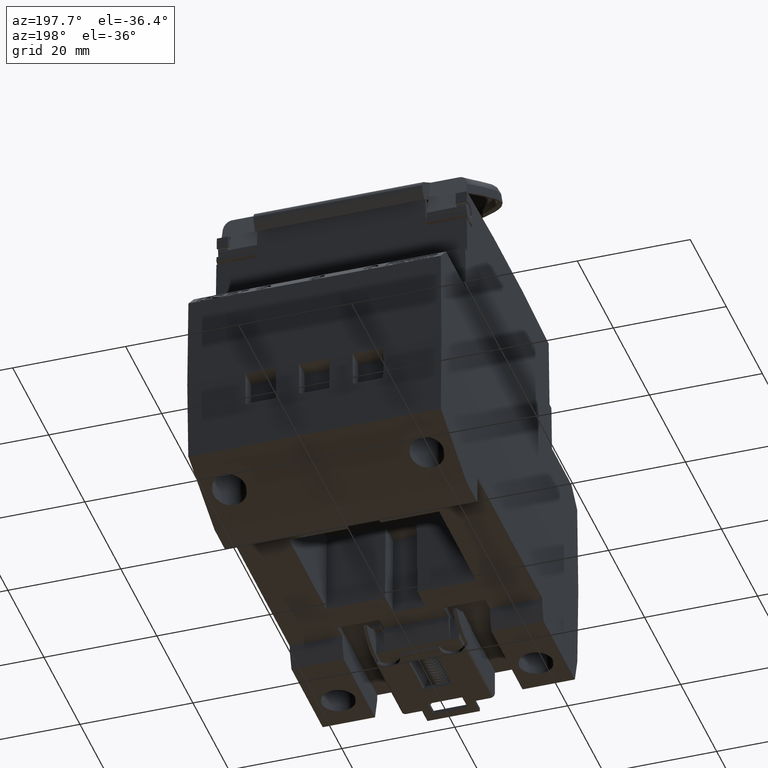
[diagram: clean part render]
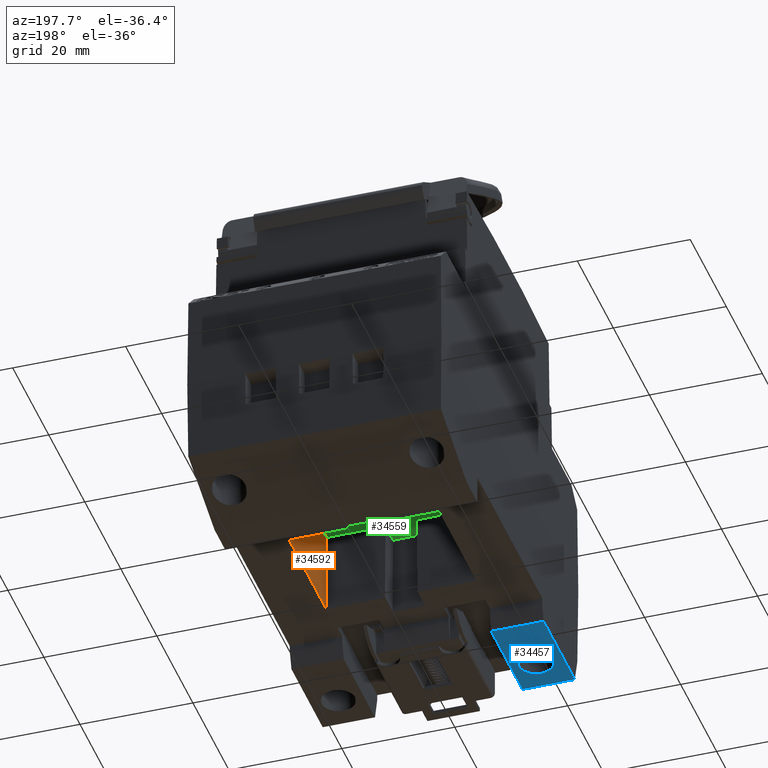
[diagram: same view with three faces highlighted in distinct colors, each labeled with its STEP entity id]
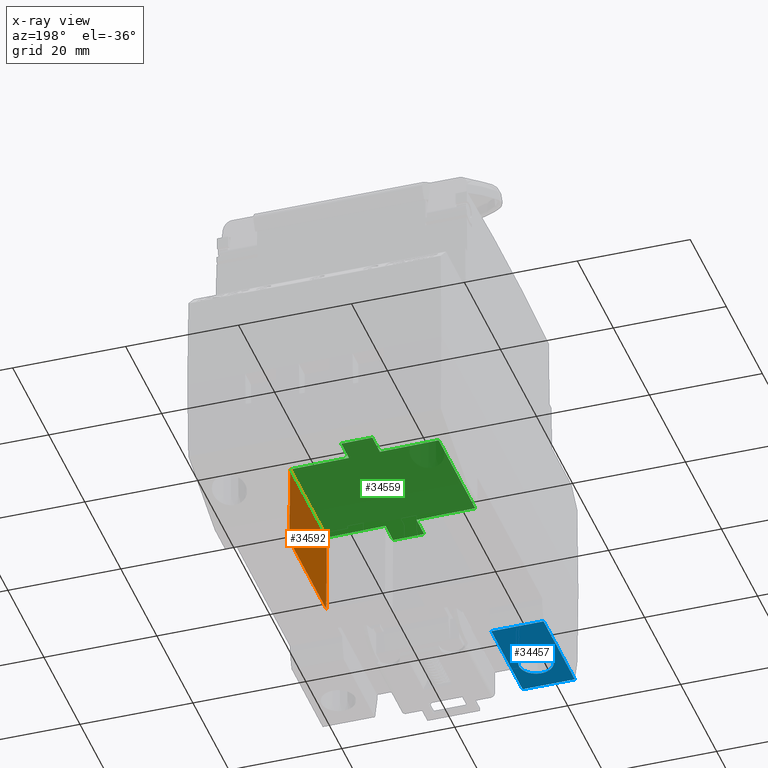
[diagram: x-ray of the same camera — body ghosted, the three highlighted faces saturated]
A machine part, auxiliary view with three faces highlighted in distinct colors.
The next image is the same camera in x-ray (body ghosted, the three faces saturated) — at least one of them is partly hidden behind the body in this view.
Their STEP definitions:

[orange] entity #34592 — the highlighted planar face has unit normal (1, -0, 0.0087).
#1136 = VECTOR ( 'NONE', #61445, 1000.000000000000000 ) ;
#2998 = AXIS2_PLACEMENT_3D ( 'NONE', #14542, #14566, #14543 ) ;
#11878 = CARTESIAN_POINT ( 'NONE',  ( 13.27919503604809900, 10.27919503604852000, -40.35000000000000100 ) ) ;
#11980 = CARTESIAN_POINT ( 'NONE',  ( 13.14969785570899500, 10.14969785570943400, -25.51109290939071500 ) ) ;
#14527 = FACE_OUTER_BOUND ( 'NONE', #25695, .T. ) ;
#14542 = CARTESIAN_POINT ( 'NONE',  ( 13.00006473079048100, -11.70000000000000300, -8.364835110347229400 ) ) ;
#14543 = DIRECTION ( 'NONE',  ( 0.008726535498373955500, 0.0000000000000000000, -0.9999619230641713100 ) ) ;
#14566 = DIRECTION ( 'NONE',  ( 0.9999619230641713100, -0.0000000000000000000, 0.008726535498373955500 ) ) ;
#14574 = PLANE ( 'NONE',  #2998 ) ;
#22458 = VECTOR ( 'NONE', #41760, 1000.000000000000100 ) ;
#25695 = EDGE_LOOP ( 'NONE', ( #30331, #30385, #30317, #30356 ) ) ;
#28527 = EDGE_CURVE ( 'NONE', #39632, #43085, #55778, .T. ) ;
#28542 = EDGE_CURVE ( 'NONE', #32657, #39632, #55828, .T. ) ;
#29216 = EDGE_CURVE ( 'NONE', #43075, #32657, #61440, .T. ) ;
#30317 = ORIENTED_EDGE ( 'NONE', *, *, #29216, .F. ) ;
#30331 = ORIENTED_EDGE ( 'NONE', *, *, #28527, .F. ) ;
#30356 = ORIENTED_EDGE ( 'NONE', *, *, #39915, .T. ) ;
#30385 = ORIENTED_EDGE ( 'NONE', *, *, #28542, .F. ) ;
#31326 = CARTESIAN_POINT ( 'NONE',  ( 13.27919503604810100, -10.27919503604852000, -40.34999999999999400 ) ) ;
#32657 = VERTEX_POINT ( 'NONE', #63629 ) ;
#34592 = ADVANCED_FACE ( 'NONE', ( #14527 ), #14574, .F. ) ;
#39632 = VERTEX_POINT ( 'NONE', #31326 ) ;
#39915 = EDGE_CURVE ( 'NONE', #43075, #43085, #41660, .T. ) ;
#41660 = LINE ( 'NONE', #41799, #22458 ) ;
#41760 = DIRECTION ( 'NONE',  ( 0.008726203243944111500, 0.008726203243944229500, -0.9999238504775704900 ) ) ;
#41799 = CARTESIAN_POINT ( 'NONE',  ( 13.14969785570900000, 10.14969785570941800, -25.51109290939071500 ) ) ;
#43075 = VERTEX_POINT ( 'NONE', #11980 ) ;
#43085 = VERTEX_POINT ( 'NONE', #11878 ) ;
#49720 = VECTOR ( 'NONE', #55794, 1000.000000000000000 ) ;
#49758 = VECTOR ( 'NONE', #55737, 1000.000000000000000 ) ;
#55737 = DIRECTION ( 'NONE',  ( 0.0000000000000000000, 1.000000000000000000, -1.927470528863119800E-016 ) ) ;
#55756 = CARTESIAN_POINT ( 'NONE',  ( 13.27919503604810300, -18.50000000000000000, -40.34999999999999400 ) ) ;
#55778 = LINE ( 'NONE', #55756, #49758 ) ;
#55794 = DIRECTION ( 'NONE',  ( 0.008726203243944233000, -0.008726203243943880800, -0.9999238504775704900 ) ) ;
#55795 = CARTESIAN_POINT ( 'NONE',  ( 13.14969785570900000, -10.14969785570942500, -25.51109290939071900 ) ) ;
#55828 = LINE ( 'NONE', #55795, #49720 ) ;
#61440 = LINE ( 'NONE', #61466, #1136 ) ;
#61445 = DIRECTION ( 'NONE',  ( -0.0000000000000000000, -1.000000000000000000, -0.0000000000000000000 ) ) ;
#61466 = CARTESIAN_POINT ( 'NONE',  ( 13.14969785570900000, -11.70000000000000300, -25.51109290939071500 ) ) ;
#63629 = CARTESIAN_POINT ( 'NONE',  ( 13.14969785570899700, -10.14969785570942500, -25.51109290939071500 ) ) ;

[blue] entity #34457 — the highlighted planar face has unit normal (0, 0, -1).
#766 = VECTOR ( 'NONE', #1298, 1000.000000000000000 ) ;
#1278 = CARTESIAN_POINT ( 'NONE',  ( -22.32828111762895400, 65.75000000000000000, -44.60000000000000100 ) ) ;
#1298 = DIRECTION ( 'NONE',  ( 0.0000000000000000000, 1.000000000000000000, 0.0000000000000000000 ) ) ;
#1300 = LINE ( 'NONE', #1278, #766 ) ;
#2793 = AXIS2_PLACEMENT_3D ( 'NONE', #13598, #13620, #13586 ) ;
#11304 = CARTESIAN_POINT ( 'NONE',  ( -14.50218171694732300, -30.25000000000000000, -44.59999999999021700 ) ) ;
#11469 = CARTESIAN_POINT ( 'NONE',  ( -20.49781828305270500, -30.25000000000000000, -44.59999999999021700 ) ) ;
#13586 = DIRECTION ( 'NONE',  ( -1.000000000000000000, 0.0000000000000000000, -0.0000000000000000000 ) ) ;
#13588 = PLANE ( 'NONE',  #2793 ) ;
#13598 = CARTESIAN_POINT ( 'NONE',  ( -30.75000000000000000, -36.58554989945169200, -44.60000000000000100 ) ) ;
#13609 = FACE_BOUND ( 'NONE', #25756, .T. ) ;
#13620 = DIRECTION ( 'NONE',  ( 0.0000000000000000000, 0.0000000000000000000, -1.000000000000000000 ) ) ;
#13638 = FACE_OUTER_BOUND ( 'NONE', #25778, .T. ) ;
#25756 = EDGE_LOOP ( 'NONE', ( #33030, #33090 ) ) ;
#25778 = EDGE_LOOP ( 'NONE', ( #32995, #33093, #33094, #33056 ) ) ;
#28439 = EDGE_CURVE ( 'NONE', #42886, #42909, #41596, .T. ) ;
#28456 = EDGE_CURVE ( 'NONE', #39723, #39658, #55464, .T. ) ;
#28790 = EDGE_CURVE ( 'NONE', #39658, #38894, #60019, .T. ) ;
#28796 = EDGE_CURVE ( 'NONE', #39723, #38932, #60005, .T. ) ;
#31317 = CARTESIAN_POINT ( 'NONE',  ( -13.06124280212683800, -36.65488103546668700, -44.60000000000000100 ) ) ;
#31429 = CARTESIAN_POINT ( 'NONE',  ( -13.06124280212683800, -19.31724503691492600, -44.60000000000000100 ) ) ;
#31962 = CARTESIAN_POINT ( 'NONE',  ( -22.32828111762895400, -19.31724503691492600, -44.60000000000000100 ) ) ;
#31985 = CARTESIAN_POINT ( 'NONE',  ( -22.32828111762895400, -36.65488103546668700, -44.60000000000000100 ) ) ;
#32995 = ORIENTED_EDGE ( 'NONE', *, *, #33693, .T. ) ;
#33030 = ORIENTED_EDGE ( 'NONE', *, *, #28439, .T. ) ;
#33056 = ORIENTED_EDGE ( 'NONE', *, *, #28790, .T. ) ;
#33090 = ORIENTED_EDGE ( 'NONE', *, *, #40186, .T. ) ;
#33093 = ORIENTED_EDGE ( 'NONE', *, *, #28796, .F. ) ;
#33094 = ORIENTED_EDGE ( 'NONE', *, *, #28456, .T. ) ;
#33693 = EDGE_CURVE ( 'NONE', #38894, #38932, #1300, .T. ) ;
#34457 = ADVANCED_FACE ( 'NONE', ( #13638, #13609 ), #13588, .T. ) ;
#38894 = VERTEX_POINT ( 'NONE', #31985 ) ;
#38932 = VERTEX_POINT ( 'NONE', #31962 ) ;
#39658 = VERTEX_POINT ( 'NONE', #31317 ) ;
#39723 = VERTEX_POINT ( 'NONE', #31429 ) ;
#40186 = EDGE_CURVE ( 'NONE', #42909, #42886, #58726, .T. ) ;
#41596 = B_SPLINE_CURVE_WITH_KNOTS ( 'NONE', 3,
 ( #55371, #55418, #55397, #55422, #55383, #55398, #55412, #55369, #55384, #55385, #55401, #55411, #55425, #55417, #55368, #55379, #55394, #55404, #55387, #55378, #55388, #55372, #55370, #55406, #55389, #55414, #55402, #55390, #55391, #55399, #55405, #55407, #55392, #55393, #55408, #55409, #55420, #55413 ),
 .UNSPECIFIED., .F., .F.,
 ( 4, 1, 1, 1, 2, 2, 2, 1, 1, 1, 2, 2, 2, 1, 1, 1, 2, 2, 2, 1, 1, 1, 2, 2, 4 ),
 ( 0.0000000000000000000, 0.06249999999999986100, 0.09374999999999984700, 0.1093750000000004700, 0.1171875000000002500, 0.1250000000000000300, 0.2499999999999951700, 0.3124999999999927800, 0.3437499999999914000, 0.3593749999999905100, 0.3671874999999902300, 0.3749999999999900100, 0.4999999999999935600, 0.5624999999999953400, 0.5937499999999962300, 0.6093749999999965600, 0.6171874999999966700, 0.6249999999999967800, 0.7499999999999954500, 0.8124999999999944500, 0.8437499999999943400, 0.8593749999999947800, 0.8671874999999952300, 0.8749999999999956700, 1.000000000000000000 ),
 .UNSPECIFIED. ) ;
#42886 = VERTEX_POINT ( 'NONE', #11304 ) ;
#42909 = VERTEX_POINT ( 'NONE', #11469 ) ;
#45845 = CARTESIAN_POINT ( 'NONE',  ( -20.49781828305270500, -30.25000000000000000, -44.59999999999021700 ) ) ;
#45846 = CARTESIAN_POINT ( 'NONE',  ( -20.49775081130747600, -30.44068614795495600, -44.60000000000000900 ) ) ;
#45884 = CARTESIAN_POINT ( 'NONE',  ( -19.91215691852843500, -32.07729329983708100, -44.60000000000000900 ) ) ;
#45888 = CARTESIAN_POINT ( 'NONE',  ( -20.39468128895300900, -31.04052150002745600, -44.59999999999999400 ) ) ;
#45889 = CARTESIAN_POINT ( 'NONE',  ( -16.44091899579004200, -33.05461062231494700, -44.60000000000000100 ) ) ;
#45890 = CARTESIAN_POINT ( 'NONE',  ( -20.32101526219636500, -31.26464605959319700, -44.60000000000000100 ) ) ;
#45891 = CARTESIAN_POINT ( 'NONE',  ( -15.04085372707911000, -31.98690869181697800, -44.59999999999998700 ) ) ;
#45893 = CARTESIAN_POINT ( 'NONE',  ( -16.42055331465698500, -33.04684656631074100, -44.60000000000000900 ) ) ;
#45897 = CARTESIAN_POINT ( 'NONE',  ( -16.55245370682565600, -33.09491581125593000, -44.60000000000000100 ) ) ;
#45900 = CARTESIAN_POINT ( 'NONE',  ( -18.24938545251194800, -33.17759014012694500, -44.60000000000000900 ) ) ;
#45901 = CARTESIAN_POINT ( 'NONE',  ( -14.72142526963165200, -31.37560136382872900, -44.60000000000000900 ) ) ;
#45905 = CARTESIAN_POINT ( 'NONE',  ( -18.93034186254882900, -32.88854611178859200, -44.60000000000000100 ) ) ;
#45906 = CARTESIAN_POINT ( 'NONE',  ( -17.02881151415274600, -33.22156700232654500, -44.60000000000000100 ) ) ;
#45907 = CARTESIAN_POINT ( 'NONE',  ( -14.50231678665792100, -30.63172901573070600, -44.59999999999999400 ) ) ;
#45910 = CARTESIAN_POINT ( 'NONE',  ( -17.30956951167438300, -33.24785197369182300, -44.60000000000000900 ) ) ;
#45911 = CARTESIAN_POINT ( 'NONE',  ( -20.29684656631130900, -31.32944668534212000, -44.60000000000000100 ) ) ;
#45912 = CARTESIAN_POINT ( 'NONE',  ( -18.76944820426766800, -32.96676743783586300, -44.59999999999998700 ) ) ;
#45913 = CARTESIAN_POINT ( 'NONE',  ( -18.65144382592253100, -33.01799371626140100, -44.60000000000001600 ) ) ;
#45914 = CARTESIAN_POINT ( 'NONE',  ( -19.47358799580273800, -32.51601980514841000, -44.60000000000000900 ) ) ;
#45915 = CARTESIAN_POINT ( 'NONE',  ( -16.70981405323605200, -33.14481406458246900, -44.60000000000000900 ) ) ;
#45916 = CARTESIAN_POINT ( 'NONE',  ( -20.34483835880542200, -31.19774203257804500, -44.60000000000000100 ) ) ;
#45917 = CARTESIAN_POINT ( 'NONE',  ( -15.23398019485335200, -32.22358799580683100, -44.60000000000000100 ) ) ;
#45918 = CARTESIAN_POINT ( 'NONE',  ( -14.78323256216548600, -31.51944820427080900, -44.60000000000001600 ) ) ;
#45919 = CARTESIAN_POINT ( 'NONE',  ( -14.75216883529862800, -31.44886301279535700, -44.60000000000000900 ) ) ;
#45920 = CARTESIAN_POINT ( 'NONE',  ( -14.57247742491099600, -30.99955603247051500, -44.60000000000000900 ) ) ;
#45921 = CARTESIAN_POINT ( 'NONE',  ( -18.69886301279345300, -32.99783116470218400, -44.60000000000000100 ) ) ;
#45922 = CARTESIAN_POINT ( 'NONE',  ( -19.23690869180982700, -32.70914627292396700, -44.59999999999999400 ) ) ;
#45923 = CARTESIAN_POINT ( 'NONE',  ( -18.62561202507613300, -33.02857050755348200, -44.60000000000000100 ) ) ;
#45924 = CARTESIAN_POINT ( 'NONE',  ( -20.30458612204997900, -31.30914292177644500, -44.59999999999999400 ) ) ;
#45925 = CARTESIAN_POINT ( 'NONE',  ( -17.88086097665123800, -33.24775090177330100, -44.60000000000000900 ) ) ;
#45926 = CARTESIAN_POINT ( 'NONE',  ( -16.48547178351721200, -33.07106189173290300, -44.60000000000001600 ) ) ;
#45927 = CARTESIAN_POINT ( 'NONE',  ( -14.73200628373904100, -31.40144382592354000, -44.60000000000000100 ) ) ;
#45928 = CARTESIAN_POINT ( 'NONE',  ( -15.67270670015939700, -32.66215691852024600, -44.60000000000000100 ) ) ;
#45929 = CARTESIAN_POINT ( 'NONE',  ( -14.50218171694732300, -30.25000000000000000, -44.59999999999021700 ) ) ;
#45934 = CARTESIAN_POINT ( 'NONE',  ( -20.13517320000163100, -31.73803088825591300, -44.60000000000000100 ) ) ;
#45935 = CARTESIAN_POINT ( 'NONE',  ( -16.01196911175823700, -32.88517320001111700, -44.60000000000000100 ) ) ;
#45936 = CARTESIAN_POINT ( 'NONE',  ( -14.86145388821371300, -31.68034186255420100, -44.60000000000000100 ) ) ;
#45937 = CARTESIAN_POINT ( 'NONE',  ( -20.47138996815393200, -30.72163589019858400, -44.59999999999999400 ) ) ;
#49322 = VECTOR ( 'NONE', #59974, 1000.000000000000000 ) ;
#49340 = VECTOR ( 'NONE', #60020, 1000.000000000000000 ) ;
#49685 = VECTOR ( 'NONE', #55497, 1000.000000000000000 ) ;
#55368 = CARTESIAN_POINT ( 'NONE',  ( -16.30113698720662500, -27.50216883529728300, -44.60000000000002300 ) ) ;
#55369 = CARTESIAN_POINT ( 'NONE',  ( -14.70315343368916700, -29.17055331465726600, -44.59999999999999400 ) ) ;
#55370 = CARTESIAN_POINT ( 'NONE',  ( -18.44754629317417000, -27.40508418874311800, -44.60000000000001600 ) ) ;
#55371 = CARTESIAN_POINT ( 'NONE',  ( -14.50218171694732300, -30.25000000000000000, -44.59999999999021700 ) ) ;
#55372 = CARTESIAN_POINT ( 'NONE',  ( -18.29018594676367800, -27.35518593541590700, -44.60000000000001600 ) ) ;
#55378 = CARTESIAN_POINT ( 'NONE',  ( -17.69043048832540400, -27.25214802630694400, -44.60000000000001600 ) ) ;
#55379 = CARTESIAN_POINT ( 'NONE',  ( -16.34855617407751500, -27.48200628373833300, -44.60000000000000100 ) ) ;
#55383 = CARTESIAN_POINT ( 'NONE',  ( -14.65516164119457600, -29.30225796742538300, -44.60000000000000900 ) ) ;
#55384 = CARTESIAN_POINT ( 'NONE',  ( -14.86482679999067700, -28.76196911175377500, -44.60000000000000900 ) ) ;
#55385 = CARTESIAN_POINT ( 'NONE',  ( -15.08784308147123600, -28.42270670016528200, -44.60000000000000900 ) ) ;
#55387 = CARTESIAN_POINT ( 'NONE',  ( -17.11913902334921300, -27.25224909822919600, -44.60000000000002300 ) ) ;
#55388 = CARTESIAN_POINT ( 'NONE',  ( -17.97118848584686300, -27.27843299767126700, -44.59999999999998700 ) ) ;
#55389 = CARTESIAN_POINT ( 'NONE',  ( -18.55908100420990800, -27.44538937768475900, -44.59999999999999400 ) ) ;
#55390 = CARTESIAN_POINT ( 'NONE',  ( -19.32729329983842300, -27.83784308147423700, -44.60000000000000100 ) ) ;
#55391 = CARTESIAN_POINT ( 'NONE',  ( -19.76601980514773900, -28.27641200419592900, -44.59999999999999400 ) ) ;
#55392 = CARTESIAN_POINT ( 'NONE',  ( -20.24783116470187800, -29.05113698720592600, -44.60000000000000900 ) ) ;
#55393 = CARTESIAN_POINT ( 'NONE',  ( -20.26799371626123000, -29.09855617407713900, -44.59999999999999400 ) ) ;
#55394 = CARTESIAN_POINT ( 'NONE',  ( -16.37438797492395500, -27.47142949244636200, -44.59999999999999400 ) ) ;
#55397 = CARTESIAN_POINT ( 'NONE',  ( -14.52861003184607100, -29.77836410980925000, -44.60000000000000900 ) ) ;
#55398 = CARTESIAN_POINT ( 'NONE',  ( -14.67898473780364000, -29.23535394040887100, -44.60000000000000900 ) ) ;
#55399 = CARTESIAN_POINT ( 'NONE',  ( -19.95914627292280800, -28.51309130818783500, -44.60000000000000100 ) ) ;
#55401 = CARTESIAN_POINT ( 'NONE',  ( -15.52641200419743600, -27.98398019485042500, -44.60000000000001600 ) ) ;
#55402 = CARTESIAN_POINT ( 'NONE',  ( -18.98803088825146200, -27.61482679999524600, -44.60000000000000100 ) ) ;
#55404 = CARTESIAN_POINT ( 'NONE',  ( -16.75061454748689400, -27.32240985987555600, -44.60000000000000900 ) ) ;
#55405 = CARTESIAN_POINT ( 'NONE',  ( -20.13854611178772200, -28.81965813744942700, -44.60000000000000100 ) ) ;
#55406 = CARTESIAN_POINT ( 'NONE',  ( -18.51452821648270200, -27.42893810826653600, -44.60000000000000900 ) ) ;
#55407 = CARTESIAN_POINT ( 'NONE',  ( -20.21676743783535500, -28.98055179573131200, -44.59999999999999400 ) ) ;
#55408 = CARTESIAN_POINT ( 'NONE',  ( -20.27857473036835900, -29.12439863617128600, -44.60000000000000100 ) ) ;
#55409 = CARTESIAN_POINT ( 'NONE',  ( -20.42752257508901100, -29.50044396752949200, -44.60000000000000100 ) ) ;
#55411 = CARTESIAN_POINT ( 'NONE',  ( -15.76309130819047300, -27.79085372707397300, -44.59999999999999400 ) ) ;
#55412 = CARTESIAN_POINT ( 'NONE',  ( -14.69541387795001300, -29.19085707822464600, -44.60000000000000100 ) ) ;
#55413 = CARTESIAN_POINT ( 'NONE',  ( -20.49781828305270500, -30.25000000000000000, -44.59999999999021700 ) ) ;
#55414 = CARTESIAN_POINT ( 'NONE',  ( -18.57944668534241100, -27.45315343368888600, -44.60000000000000100 ) ) ;
#55417 = CARTESIAN_POINT ( 'NONE',  ( -16.23055179573246300, -27.53323256216324900, -44.60000000000000100 ) ) ;
#55418 = CARTESIAN_POINT ( 'NONE',  ( -14.50224918869254200, -30.05931385204953100, -44.60000000000000900 ) ) ;
#55420 = CARTESIAN_POINT ( 'NONE',  ( -20.49768321334207500, -29.86827098426929100, -44.59999999999999400 ) ) ;
#55422 = CARTESIAN_POINT ( 'NONE',  ( -14.60531871104699600, -29.45947849997841300, -44.60000000000000900 ) ) ;
#55425 = CARTESIAN_POINT ( 'NONE',  ( -16.06965813745140900, -27.61145388820986200, -44.60000000000000900 ) ) ;
#55464 = LINE ( 'NONE', #55498, #49685 ) ;
#55497 = DIRECTION ( 'NONE',  ( -0.0000000000000000000, -1.000000000000000000, -0.0000000000000000000 ) ) ;
#55498 = CARTESIAN_POINT ( 'NONE',  ( -13.06124280212683800, -36.58554989945169200, -44.60000000000000100 ) ) ;
#58726 = B_SPLINE_CURVE_WITH_KNOTS ( 'NONE', 3,
 ( #45845, #45846, #45937, #45888, #45916, #45890, #45924, #45911, #45934, #45884, #45914, #45922, #45905, #45912, #45921, #45913, #45923, #45900, #45925, #45910, #45906, #45915, #45897, #45926, #45889, #45893, #45935, #45928, #45917, #45891, #45936, #45918, #45919, #45927, #45901, #45920, #45907, #45929 ),
 .UNSPECIFIED., .F., .F.,
 ( 4, 1, 1, 1, 2, 2, 2, 1, 1, 1, 2, 2, 2, 1, 1, 1, 2, 2, 2, 1, 1, 1, 2, 2, 4 ),
 ( 0.0000000000000000000, 0.06250000000000552300, 0.09375000000000828500, 0.1093750000000096600, 0.1171875000000099900, 0.1250000000000103300, 0.2500000000000280900, 0.3125000000000362500, 0.3437500000000407500, 0.3593750000000420800, 0.3671875000000431900, 0.3750000000000442400, 0.5000000000000456300, 0.5625000000000457400, 0.5937500000000458500, 0.6093750000000449600, 0.6171875000000441900, 0.6250000000000434100, 0.7500000000000287500, 0.8125000000000206500, 0.8437500000000176500, 0.8593750000000151000, 0.8671875000000139900, 0.8750000000000128800, 1.000000000000000000 ),
 .UNSPECIFIED. ) ;
#59972 = CARTESIAN_POINT ( 'NONE',  ( -30.75000000000000000, -19.31724503691493000, -44.60000000000000100 ) ) ;
#59974 = DIRECTION ( 'NONE',  ( -1.000000000000000000, 0.0000000000000000000, -0.0000000000000000000 ) ) ;
#59992 = CARTESIAN_POINT ( 'NONE',  ( -30.75000000000000000, -36.65488103546668700, -44.60000000000000100 ) ) ;
#60005 = LINE ( 'NONE', #59972, #49322 ) ;
#60019 = LINE ( 'NONE', #59992, #49340 ) ;
#60020 = DIRECTION ( 'NONE',  ( -1.000000000000000000, 0.0000000000000000000, -0.0000000000000000000 ) ) ;

[green] entity #34559 — the highlighted planar face has unit normal (-0.0087, -0, -1).
#574 = VECTOR ( 'NONE', #61627, 1000.000000000000100 ) ;
#584 = VECTOR ( 'NONE', #61534, 1000.000000000000000 ) ;
#590 = VECTOR ( 'NONE', #61863, 1000.000000000000100 ) ;
#603 = VECTOR ( 'NONE', #61898, 1000.000000000000100 ) ;
#608 = VECTOR ( 'NONE', #61560, 1000.000000000000000 ) ;
#615 = VECTOR ( 'NONE', #61562, 1000.000000000000000 ) ;
#632 = VECTOR ( 'NONE', #61555, 1000.000000000000000 ) ;
#1136 = VECTOR ( 'NONE', #61445, 1000.000000000000000 ) ;
#1158 = VECTOR ( 'NONE', #61512, 1000.000000000000000 ) ;
#2951 = AXIS2_PLACEMENT_3D ( 'NONE', #14268, #14269, #14270 ) ;
#11956 = CARTESIAN_POINT ( 'NONE',  ( 2.751524009620088600, -10.14890594928311400, -25.42034942097053500 ) ) ;
#11980 = CARTESIAN_POINT ( 'NONE',  ( 13.14969785570899500, 10.14969785570943400, -25.51109290939071500 ) ) ;
#12107 = CARTESIAN_POINT ( 'NONE',  ( 2.751524009620090800, -14.38781176896558700, -25.42034942097053800 ) ) ;
#12139 = CARTESIAN_POINT ( 'NONE',  ( -2.751104939186556700, -10.14848687884904000, -25.37232870563267500 ) ) ;
#12142 = CARTESIAN_POINT ( 'NONE',  ( 2.751524009620093500, 10.14890594928311200, -25.42034942097053800 ) ) ;
#12162 = CARTESIAN_POINT ( 'NONE',  ( -2.751104939186556700, -14.38739269853161300, -25.37232870563267500 ) ) ;
#14267 = PLANE ( 'NONE',  #2951 ) ;
#14268 = CARTESIAN_POINT ( 'NONE',  ( 74.32073448127228200, 23.97500475979799000, -26.04492445864587300 ) ) ;
#14269 = DIRECTION ( 'NONE',  ( -0.008726535498377263600, -1.136543123155289200E-017, -0.9999619230641713100 ) ) ;
#14270 = DIRECTION ( 'NONE',  ( -0.9999619230641712000, 0.0000000000000000000, 0.008726535498377261900 ) ) ;
#14272 = FACE_OUTER_BOUND ( 'NONE', #26929, .T. ) ;
#22368 = VECTOR ( 'NONE', #41592, 1000.000000000000100 ) ;
#22370 = VECTOR ( 'NONE', #41778, 1000.000000000000000 ) ;
#22421 = VECTOR ( 'NONE', #42062, 1000.000000000000000 ) ;
#26929 = EDGE_LOOP ( 'NONE', ( #29887, #29862, #29844, #29868, #29888, #29940, #29891, #29969, #29960, #29941, #29970, #29907 ) ) ;
#29216 = EDGE_CURVE ( 'NONE', #43075, #32657, #61440, .T. ) ;
#29232 = EDGE_CURVE ( 'NONE', #32631, #32656, #61479, .T. ) ;
#29235 = EDGE_CURVE ( 'NONE', #32603, #32631, #61531, .T. ) ;
#29237 = EDGE_CURVE ( 'NONE', #32657, #43076, #61554, .T. ) ;
#29240 = EDGE_CURVE ( 'NONE', #43127, #32614, #61543, .T. ) ;
#29243 = EDGE_CURVE ( 'NONE', #32704, #32656, #61563, .T. ) ;
#29261 = EDGE_CURVE ( 'NONE', #43119, #32603, #61667, .T. ) ;
#29300 = EDGE_CURVE ( 'NONE', #43130, #43108, #61866, .T. ) ;
#29305 = EDGE_CURVE ( 'NONE', #32704, #32614, #61943, .T. ) ;
#29844 = ORIENTED_EDGE ( 'NONE', *, *, #39891, .T. ) ;
#29862 = ORIENTED_EDGE ( 'NONE', *, *, #29240, .F. ) ;
#29868 = ORIENTED_EDGE ( 'NONE', *, *, #29216, .T. ) ;
#29887 = ORIENTED_EDGE ( 'NONE', *, *, #29305, .T. ) ;
#29888 = ORIENTED_EDGE ( 'NONE', *, *, #29237, .T. ) ;
#29891 = ORIENTED_EDGE ( 'NONE', *, *, #29300, .T. ) ;
#29907 = ORIENTED_EDGE ( 'NONE', *, *, #29243, .F. ) ;
#29940 = ORIENTED_EDGE ( 'NONE', *, *, #39972, .F. ) ;
#29941 = ORIENTED_EDGE ( 'NONE', *, *, #29235, .T. ) ;
#29960 = ORIENTED_EDGE ( 'NONE', *, *, #29261, .T. ) ;
#29969 = ORIENTED_EDGE ( 'NONE', *, *, #39906, .F. ) ;
#29970 = ORIENTED_EDGE ( 'NONE', *, *, #29232, .T. ) ;
#32603 = VERTEX_POINT ( 'NONE', #63519 ) ;
#32614 = VERTEX_POINT ( 'NONE', #63526 ) ;
#32631 = VERTEX_POINT ( 'NONE', #63514 ) ;
#32656 = VERTEX_POINT ( 'NONE', #63625 ) ;
#32657 = VERTEX_POINT ( 'NONE', #63629 ) ;
#32704 = VERTEX_POINT ( 'NONE', #63613 ) ;
#34559 = ADVANCED_FACE ( 'NONE', ( #14272 ), #14267, .T. ) ;
#39891 = EDGE_CURVE ( 'NONE', #43127, #43075, #41369, .T. ) ;
#39906 = EDGE_CURVE ( 'NONE', #43119, #43108, #41738, .T. ) ;
#39972 = EDGE_CURVE ( 'NONE', #43130, #43076, #42036, .T. ) ;
#41369 = LINE ( 'NONE', #41536, #22368 ) ;
#41536 = CARTESIAN_POINT ( 'NONE',  ( 2.751524009620094800, 10.14890594928310600, -25.42034942097053100 ) ) ;
#41592 = DIRECTION ( 'NONE',  ( 0.9999619201644651700, 7.615532134444063200E-005, -0.008726535473072411600 ) ) ;
#41738 = LINE ( 'NONE', #41777, #22370 ) ;
#41777 = CARTESIAN_POINT ( 'NONE',  ( -2.751104939186547400, 7.764261564712459300, -25.37232870563267500 ) ) ;
#41778 = DIRECTION ( 'NONE',  ( -0.0000000000000000000, -1.000000000000000000, -0.0000000000000000000 ) ) ;
#42036 = LINE ( 'NONE', #42077, #22421 ) ;
#42062 = DIRECTION ( 'NONE',  ( 0.0000000000000000000, 1.000000000000000000, 0.0000000000000000000 ) ) ;
#42077 = CARTESIAN_POINT ( 'NONE',  ( 2.751524009620088600, 7.764261564712459300, -25.42034942097053800 ) ) ;
#43075 = VERTEX_POINT ( 'NONE', #11980 ) ;
#43076 = VERTEX_POINT ( 'NONE', #11956 ) ;
#43108 = VERTEX_POINT ( 'NONE', #12162 ) ;
#43119 = VERTEX_POINT ( 'NONE', #12139 ) ;
#43127 = VERTEX_POINT ( 'NONE', #12142 ) ;
#43130 = VERTEX_POINT ( 'NONE', #12107 ) ;
#61440 = LINE ( 'NONE', #61466, #1136 ) ;
#61445 = DIRECTION ( 'NONE',  ( -0.0000000000000000000, -1.000000000000000000, -0.0000000000000000000 ) ) ;
#61466 = CARTESIAN_POINT ( 'NONE',  ( 13.14969785570900000, -11.70000000000000300, -25.51109290939071500 ) ) ;
#61479 = LINE ( 'NONE', #61496, #1158 ) ;
#61496 = CARTESIAN_POINT ( 'NONE',  ( -13.14769509303399000, 10.14769509303407200, -25.28159903788531100 ) ) ;
#61512 = DIRECTION ( 'NONE',  ( 0.9999619201644651700, 7.615532132927464900E-005, -0.008726535473071887800 ) ) ;
#61524 = CARTESIAN_POINT ( 'NONE',  ( 13.14969785570900600, -10.14969785570942000, -25.51109290939071900 ) ) ;
#61531 = LINE ( 'NONE', #61542, #608 ) ;
#61532 = CARTESIAN_POINT ( 'NONE',  ( 2.751524009620088600, 7.764261564712459300, -25.42034942097053800 ) ) ;
#61534 = DIRECTION ( 'NONE',  ( -0.0000000000000000000, -1.000000000000000000, -0.0000000000000000000 ) ) ;
#61542 = CARTESIAN_POINT ( 'NONE',  ( -13.14769509303398500, -11.70000000000000300, -25.28159903788531100 ) ) ;
#61543 = LINE ( 'NONE', #61532, #615 ) ;
#61554 = LINE ( 'NONE', #61524, #632 ) ;
#61555 = DIRECTION ( 'NONE',  ( -0.9999619201644651700, 7.615532134494105900E-005, 0.008726535473072741200 ) ) ;
#61560 = DIRECTION ( 'NONE',  ( 0.0000000000000000000, 1.000000000000000000, -0.0000000000000000000 ) ) ;
#61562 = DIRECTION ( 'NONE',  ( 0.0000000000000000000, 1.000000000000000000, 0.0000000000000000000 ) ) ;
#61563 = LINE ( 'NONE', #61567, #584 ) ;
#61567 = CARTESIAN_POINT ( 'NONE',  ( -2.751104939186547400, 7.764261564712459300, -25.37232870563267500 ) ) ;
#61627 = DIRECTION ( 'NONE',  ( -0.9999619201644651700, 7.615532133010886200E-005, 0.008726535473071884300 ) ) ;
#61634 = CARTESIAN_POINT ( 'NONE',  ( -2.751104939186547900, -10.14848687884904500, -25.37232870563267500 ) ) ;
#61667 = LINE ( 'NONE', #61634, #574 ) ;
#61849 = CARTESIAN_POINT ( 'NONE',  ( 2.751524009620098400, -14.38781176896558900, -25.42034942097053100 ) ) ;
#61863 = DIRECTION ( 'NONE',  ( -0.9999619201644651700, 7.615532134482727200E-005, 0.008726535473071606700 ) ) ;
#61866 = LINE ( 'NONE', #61849, #590 ) ;
#61898 = DIRECTION ( 'NONE',  ( 0.9999619201644651700, 7.615532134482727200E-005, -0.008726535473071606700 ) ) ;
#61911 = CARTESIAN_POINT ( 'NONE',  ( -2.751104939186547000, 14.38739269853161900, -25.37232870563267500 ) ) ;
#61943 = LINE ( 'NONE', #61911, #603 ) ;
#63514 = CARTESIAN_POINT ( 'NONE',  ( -13.14769509303399400, 10.14769509303406500, -25.28159903788531400 ) ) ;
#63519 = CARTESIAN_POINT ( 'NONE',  ( -13.14769509303399400, -10.14769509303406500, -25.28159903788531400 ) ) ;
#63526 = CARTESIAN_POINT ( 'NONE',  ( 2.751524009620097000, 14.38781176896558900, -25.42034942097053500 ) ) ;
#63613 = CARTESIAN_POINT ( 'NONE',  ( -2.751104939186556700, 14.38739269853161100, -25.37232870563267500 ) ) ;
#63625 = CARTESIAN_POINT ( 'NONE',  ( -2.751104939186557600, 10.14848687884904000, -25.37232870563267500 ) ) ;
#63629 = CARTESIAN_POINT ( 'NONE',  ( 13.14969785570899700, -10.14969785570942500, -25.51109290939071500 ) ) ;